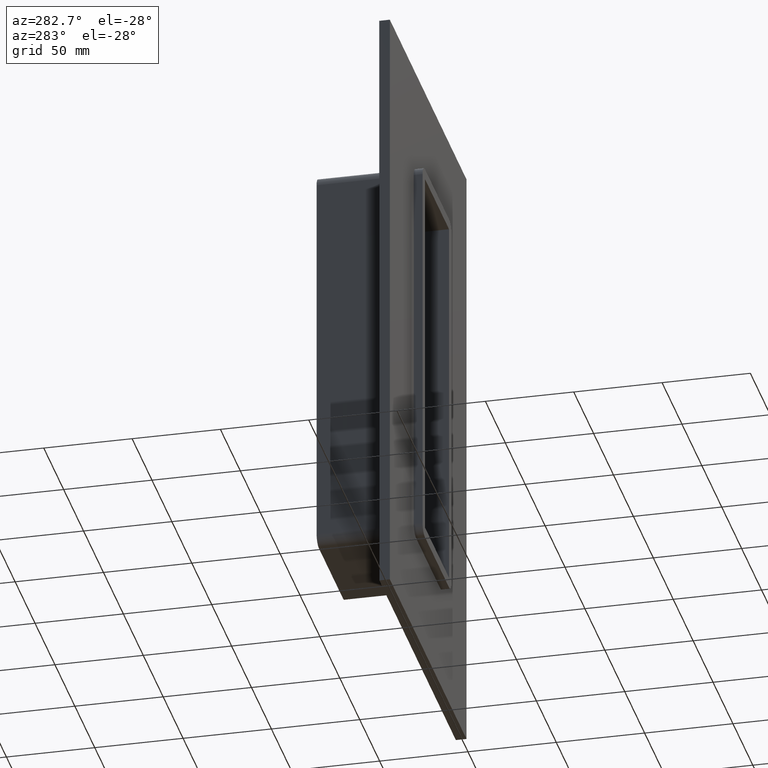
[diagram: clean part render]
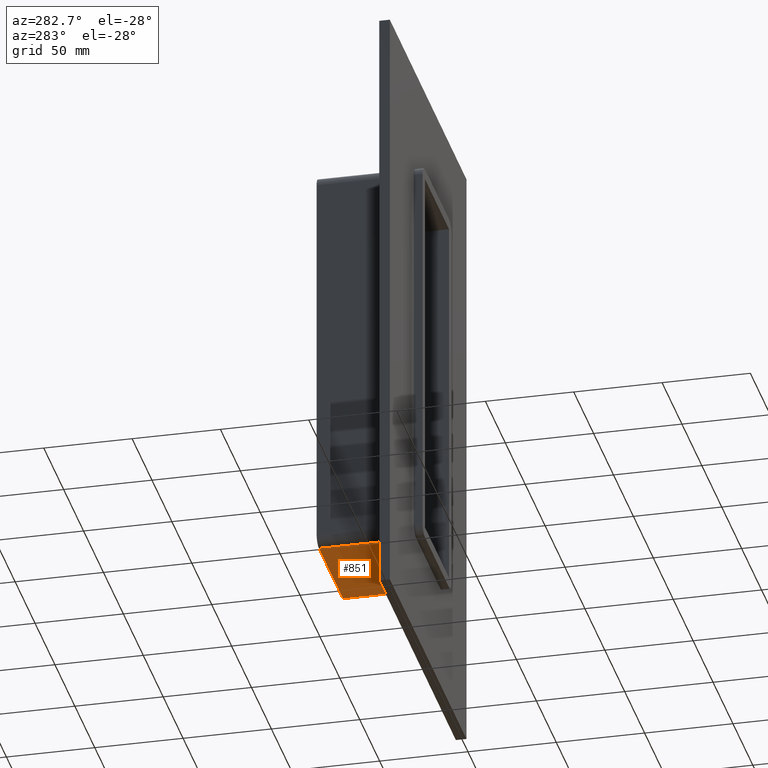
[diagram: same view with one face highlighted and labeled with its STEP entity id]
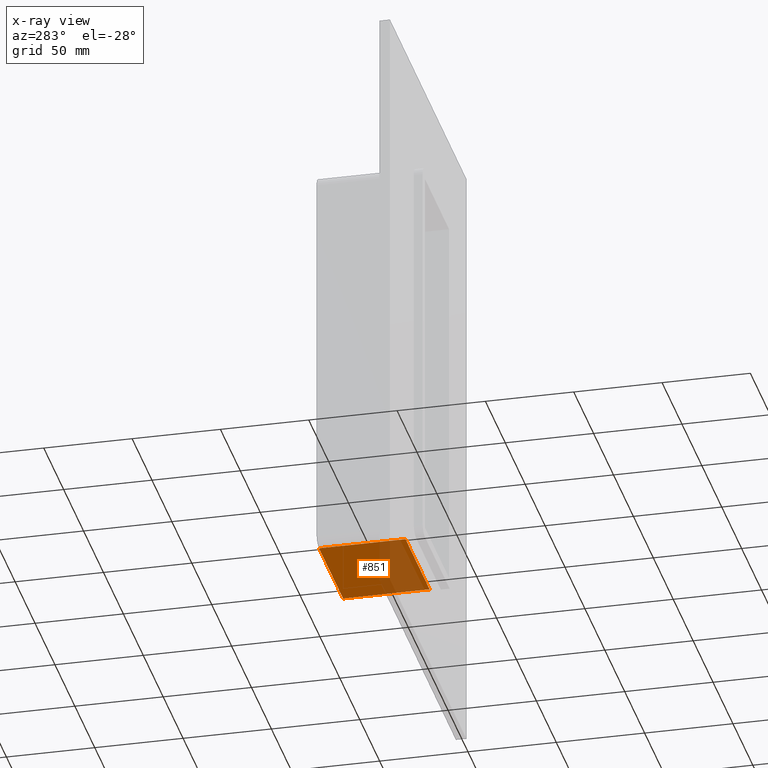
[diagram: x-ray of the same camera — body ghosted, the highlighted face saturated]
A machine part, auxiliary view. The second image highlights one B-rep face of the part: STEP entity #851.
The next image is the same camera in x-ray: the body ghosted, the highlighted face saturated — about 37% of this face is hidden behind the body in this view.
In plain terms, the highlighted planar face has unit normal (0, 0, -1).
Its self-contained STEP definition (entity closure, byte-faithful):
#143=CARTESIAN_POINT('',(-30.249999999999986,6.000000000000001,-114.99999999999999));
#144=VERTEX_POINT('',#143);
#152=CARTESIAN_POINT('',(30.249999999999986,6.000000000000001,-114.99999999999999));
#153=VERTEX_POINT('',#152);
#154=CARTESIAN_POINT('',(30.249999999999986,6.000000000000001,-114.99999999999999));
#155=DIRECTION('',(-1.0,0.0,0.0));
#156=VECTOR('',#155,60.499999999999972);
#157=LINE('',#154,#156);
#158=EDGE_CURVE('',#153,#144,#157,.T.);
#442=CARTESIAN_POINT('',(-30.249999999999986,55.0,-115.0));
#443=VERTEX_POINT('',#442);
#451=CARTESIAN_POINT('',(-30.249999999999986,6.000000000000001,-114.99999999999999));
#452=DIRECTION('',(0.0,1.0,0.0));
#453=VECTOR('',#452,49.0);
#454=LINE('',#451,#453);
#455=EDGE_CURVE('',#144,#443,#454,.T.);
#828=CARTESIAN_POINT('',(30.249999999999986,0.0,-114.99999999999999));
#829=DIRECTION('',(0.0,0.0,-1.0));
#830=DIRECTION('',(-1.0,0.0,0.0));
#831=AXIS2_PLACEMENT_3D('',#828,#829,#830);
#832=PLANE('',#831);
#833=ORIENTED_EDGE('',*,*,#158,.T.);
#834=ORIENTED_EDGE('',*,*,#455,.T.);
#835=CARTESIAN_POINT('',(30.249999999999986,55.0,-115.0));
#836=VERTEX_POINT('',#835);
#837=CARTESIAN_POINT('',(30.249999999999986,55.0,-114.99999999999999));
#838=DIRECTION('',(-1.0,0.0,0.0));
#839=VECTOR('',#838,60.499999999999972);
#840=LINE('',#837,#839);
#841=EDGE_CURVE('',#836,#443,#840,.T.);
#842=ORIENTED_EDGE('',*,*,#841,.F.);
#843=CARTESIAN_POINT('',(30.249999999999986,6.000000000000001,-114.99999999999999));
#844=DIRECTION('',(0.0,1.0,0.0));
#845=VECTOR('',#844,49.0);
#846=LINE('',#843,#845);
#847=EDGE_CURVE('',#153,#836,#846,.T.);
#848=ORIENTED_EDGE('',*,*,#847,.F.);
#849=EDGE_LOOP('',(#833,#834,#842,#848));
#850=FACE_OUTER_BOUND('',#849,.T.);
#851=ADVANCED_FACE('',(#850),#832,.T.);